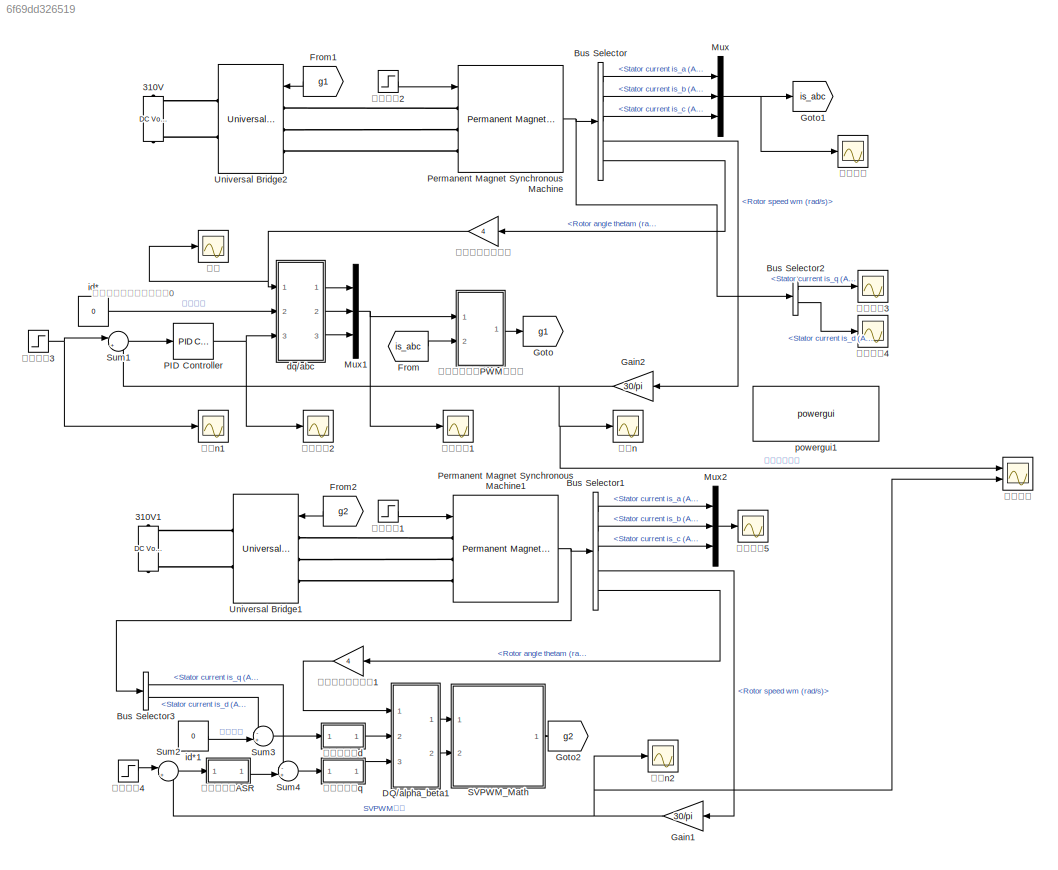
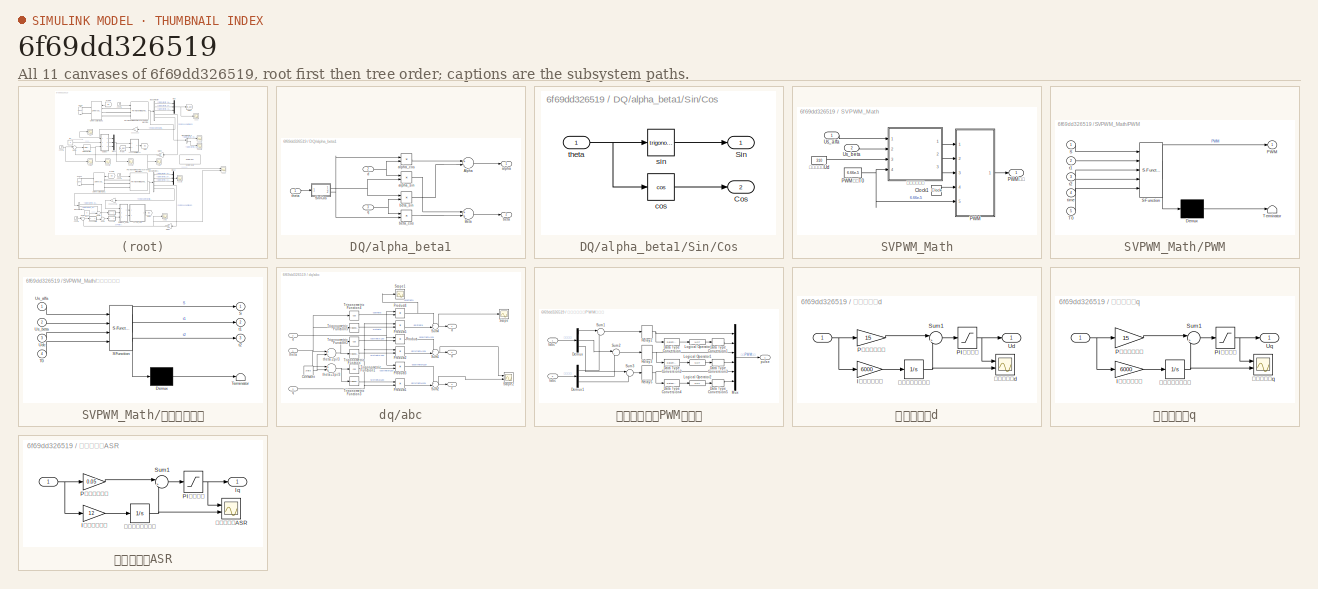
[diagram: thumbnail index - all 11 canvases of the model, root first then tree order]
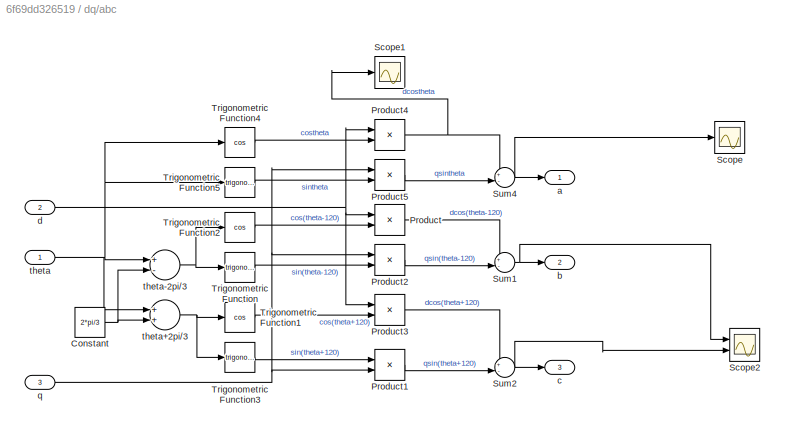
MODEL slx_6f69dd326519
KIND model
CONFIG AbsTol = auto
CONFIG EnableMultiTasking = off
CONFIG FixedStep = auto
CONFIG MaxStep = 1e-4
CONFIG MinStep = auto
CONFIG RelTol = 1e-3
CONFIG SampleTimeConstraint = Unconstrained
CONFIG Solver = ode23tb
CONFIG SolverName = ode23tb
CONFIG StartTime = 0.0
CONFIG StopTime = 0.5
BLOCK [Reference] 310V  REF=powerlib/Electrical
Sources/DC Voltage Source
  Ports = [0, 0, 0, 0, 0, 1, 1]
  SourceBlock = powerlib/Electrical\nSources/DC Voltage Source
  SourceProductBaseCode = PS
  SourceProductName = Simscape Power Systems
  SourceType = DC Voltage Source
BLOCK [Reference] 310V1  REF=powerlib/Electrical
Sources/DC Voltage Source
  Ports = [0, 0, 0, 0, 0, 1, 1]
  SourceBlock = powerlib/Electrical\nSources/DC Voltage Source
  SourceProductBaseCode = PS
  SourceProductName = Simscape Power Systems
  SourceType = DC Voltage Source
BLOCK [BusSelector] Bus Selector
  OutputAsBus = off
  OutputSignals = Stator current is_a (A),Stator current is_b (A),Stator current is_c (A),Rotor speed wm (rad/s),Rotor angle thetam (rad)
  Ports = [1, 5]
BLOCK [BusSelector] Bus Selector1
  OutputAsBus = off
  OutputSignals = Stator current is_a (A),Stator current is_b (A),Stator current is_c (A),Rotor speed wm (rad/s),Rotor angle thetam (rad)
  Ports = [1, 5]
BLOCK [BusSelector] Bus Selector2
  OutputAsBus = off
  OutputSignals = Stator current is_q (A),Stator current is_d (A)
  Ports = [1, 2]
BLOCK [BusSelector] Bus Selector3
  OutputAsBus = off
  OutputSignals = Stator current is_q (A),Stator current is_d (A)
  Ports = [1, 2]
BLOCK [SubSystem] DQ//alpha_beta1
  Ports = [3, 2]
  RequestExecContextInheritance = off
  Variant = off
BLOCK [Sum] DQ//alpha_beta1/Alpha
  InputSameDT = off
  Inputs = +-
  OutDataTypeStr = Inherit: Inherit via internal rule
  Ports = [2, 1]
  SaturateOnIntegerOverflow = off
BLOCK [Sum] DQ//alpha_beta1/Beta
  InputSameDT = off
  OutDataTypeStr = Inherit: Inherit via internal rule
  Ports = [2, 1]
  SaturateOnIntegerOverflow = off
BLOCK [SubSystem] DQ//alpha_beta1/Sin//Cos
  Ports = [1, 2]
  RequestExecContextInheritance = off
  Variant = off
BLOCK [Outport] DQ//alpha_beta1/Sin//Cos/Cos
  IconDisplay = Port number
  Port = 2
BLOCK [Outport] DQ//alpha_beta1/Sin//Cos/Sin
  IconDisplay = Port number
BLOCK [Trigonometry] DQ//alpha_beta1/Sin//Cos/cos
  Operator = cos
  Ports = [1, 1]
BLOCK [Trigonometry] DQ//alpha_beta1/Sin//Cos/sin
  Ports = [1, 1]
BLOCK [Inport] DQ//alpha_beta1/Sin//Cos/theta
  IconDisplay = Port number
BLOCK [Outport] DQ//alpha_beta1/alpha
  IconDisplay = Port number
BLOCK [Product] DQ//alpha_beta1/alpha_cos
  InputSameDT = off
  OutDataTypeStr = Inherit: Inherit via internal rule
  Ports = [2, 1]
  RndMeth = Floor
  SaturateOnIntegerOverflow = off
BLOCK [Product] DQ//alpha_beta1/alpha_sin
  InputSameDT = off
  OutDataTypeStr = Inherit: Inherit via internal rule
  Ports = [2, 1]
  RndMeth = Floor
  SaturateOnIntegerOverflow = off
BLOCK [Outport] DQ//alpha_beta1/beta
  IconDisplay = Port number
  Port = 2
BLOCK [Product] DQ//alpha_beta1/beta_cos
  InputSameDT = off
  OutDataTypeStr = Inherit: Inherit via internal rule
  Ports = [2, 1]
  RndMeth = Floor
  SaturateOnIntegerOverflow = off
BLOCK [Product] DQ//alpha_beta1/beta_sin
  InputSameDT = off
  OutDataTypeStr = Inherit: Inherit via internal rule
  Ports = [2, 1]
  RndMeth = Floor
  SaturateOnIntegerOverflow = off
BLOCK [Inport] DQ//alpha_beta1/d
  IconDisplay = Port number
  Port = 2
BLOCK [Inport] DQ//alpha_beta1/q
  IconDisplay = Port number
  Port = 3
BLOCK [Inport] DQ//alpha_beta1/theta
  IconDisplay = Port number
BLOCK [From] From
  GotoTag = is_abc
BLOCK [From] From1
  GotoTag = g1
BLOCK [From] From2
  GotoTag = g2
BLOCK [Gain] Gain1
  Gain = 30/pi
  OutDataTypeStr = Inherit: Inherit via internal rule
  ParamDataTypeStr = Inherit: Inherit via internal rule
  SaturateOnIntegerOverflow = off
BLOCK [Gain] Gain2
  Gain = 30/pi
  OutDataTypeStr = Inherit: Inherit via internal rule
  ParamDataTypeStr = Inherit: Inherit via internal rule
  SaturateOnIntegerOverflow = off
BLOCK [Goto] Goto
  GotoTag = g1
BLOCK [Goto] Goto1
  GotoTag = is_abc
BLOCK [Goto] Goto2
  GotoTag = g2
BLOCK [Mux] Mux
  DisplayOption = bar
  Inputs = 3
  Ports = [3, 1]
BLOCK [Mux] Mux1
  DisplayOption = bar
  Inputs = 3
  Ports = [3, 1]
BLOCK [Mux] Mux2
  DisplayOption = bar
  Inputs = 3
  Ports = [3, 1]
BLOCK [Reference] PID Controller  REF=simulink/Continuous/PID Controller
  Ports = [1, 1]
  SourceBlock = simulink/Continuous/PID Controller
  SourceProductBaseCode = SL
  SourceProductName = Simulink
  SourceType = PID 1dof
BLOCK [Reference] Permanent Magnet Synchronous Machine  REF=powerlib/Machines/Permanent Magnet
Synchronous Machine
  Ports = [1, 1, 0, 0, 0, 3]
  SourceBlock = powerlib/Machines/Permanent Magnet\nSynchronous Machine
  SourceProductBaseCode = PS
  SourceProductName = Simscape Power Systems
  SourceType = Permanent Magnet Synchronous Machine
BLOCK [Reference] Permanent Magnet Synchronous Machine1  REF=powerlib/Machines/Permanent Magnet
Synchronous Machine
  Ports = [1, 1, 0, 0, 0, 3]
  SourceBlock = powerlib/Machines/Permanent Magnet\nSynchronous Machine
  SourceProductBaseCode = PS
  SourceProductName = Simscape Power Systems
  SourceType = Permanent Magnet Synchronous Machine
BLOCK [SubSystem] SVPWM_Math
  Ports = [2, 1]
  RequestExecContextInheritance = off
  Variant = off
BLOCK [Clock] SVPWM_Math/Clock1
  Decimation = 1
BLOCK [SubSystem] SVPWM_Math/PWM
  ErrorFcn = Stateflow.Translate.translate
  PermitHierarchicalResolution = ExplicitOnly
  Ports = [5, 1]
  RequestExecContextInheritance = off
  SFBlockType = MATLAB Function
  TreatAsAtomicUnit = on
  Variant = off
BLOCK [Demux] SVPWM_Math/PWM/ Demux 
  Outputs = 1
  Ports = [1, 1]
BLOCK [S-Function] SVPWM_Math/PWM/ SFunction 
  EnableBusSupport = on
  FunctionName = sf_sfun
  PortCounts = [5 2]
  Ports = [5, 2]
  SFcnIsStateOwnerBlock = off
  SFunctionDeploymentMode = off
  Tag = Stateflow S-Function SynchronouslChange0 5
BLOCK [Terminator] SVPWM_Math/PWM/ Terminator 
BLOCK [Outport] SVPWM_Math/PWM/PWM
  IconDisplay = Port number
BLOCK [Inport] SVPWM_Math/PWM/S
  IconDisplay = Port number
BLOCK [Inport] SVPWM_Math/PWM/T0
  IconDisplay = Port number
  Port = 5
BLOCK [Inport] SVPWM_Math/PWM/t1
  IconDisplay = Port number
  Port = 2
BLOCK [Inport] SVPWM_Math/PWM/t2
  IconDisplay = Port number
  Port = 3
BLOCK [Inport] SVPWM_Math/PWM/time
  IconDisplay = Port number
  Port = 4
BLOCK [Outport] SVPWM_Math/PWM信号
  IconDisplay = Port number
BLOCK [Constant] SVPWM_Math/PWM周期T0
  Value = 6.66e-5
BLOCK [Inport] SVPWM_Math/Us_alfa
  IconDisplay = Port number
BLOCK [Inport] SVPWM_Math/Us_beta
  IconDisplay = Port number
  Port = 2
BLOCK [SubSystem] SVPWM_Math/作用时间计算
  ErrorFcn = Stateflow.Translate.translate
  PermitHierarchicalResolution = ExplicitOnly
  Ports = [4, 3]
  RequestExecContextInheritance = off
  SFBlockType = MATLAB Function
  TreatAsAtomicUnit = on
  Variant = off
BLOCK [Demux] SVPWM_Math/作用时间计算/ Demux 
  Outputs = 1
  Ports = [1, 1]
BLOCK [S-Function] SVPWM_Math/作用时间计算/ SFunction 
  EnableBusSupport = on
  FunctionName = sf_sfun
  PortCounts = [4 4]
  Ports = [4, 4]
  SFcnIsStateOwnerBlock = off
  SFunctionDeploymentMode = off
  Tag = Stateflow S-Function SynchronouslChange0 2
BLOCK [Terminator] SVPWM_Math/作用时间计算/ Terminator 
BLOCK [Outport] SVPWM_Math/作用时间计算/S
  IconDisplay = Port number
BLOCK [Inport] SVPWM_Math/作用时间计算/T0
  IconDisplay = Port number
  Port = 4
BLOCK [Inport] SVPWM_Math/作用时间计算/Udc
  IconDisplay = Port number
  Port = 3
BLOCK [Inport] SVPWM_Math/作用时间计算/Us_alfa
  IconDisplay = Port number
BLOCK [Inport] SVPWM_Math/作用时间计算/Us_beta
  IconDisplay = Port number
  Port = 2
BLOCK [Outport] SVPWM_Math/作用时间计算/t1
  IconDisplay = Port number
  Port = 2
BLOCK [Outport] SVPWM_Math/作用时间计算/t2
  IconDisplay = Port number
  Port = 3
BLOCK [Constant] SVPWM_Math/直流侧电压Ud
  Value = 310
BLOCK [Sum] Sum1
  IconShape = round
  InputSameDT = off
  Inputs = |+-
  OutDataTypeStr = Inherit: Inherit via internal rule
  Ports = [2, 1]
  SaturateOnIntegerOverflow = off
BLOCK [Sum] Sum2
  IconShape = round
  InputSameDT = off
  Inputs = |+-
  OutDataTypeStr = Inherit: Inherit via internal rule
  Ports = [2, 1]
  SaturateOnIntegerOverflow = off
BLOCK [Sum] Sum3
  IconShape = round
  InputSameDT = off
  Inputs = -+|
  OutDataTypeStr = Inherit: Inherit via internal rule
  Ports = [2, 1]
  SaturateOnIntegerOverflow = off
BLOCK [Sum] Sum4
  IconShape = round
  InputSameDT = off
  Inputs = -+|
  OutDataTypeStr = Inherit: Inherit via internal rule
  Ports = [2, 1]
  SaturateOnIntegerOverflow = off
BLOCK [Reference] Universal Bridge1  REF=powerlib/Power
Electronics/Universal Bridge
  Ports = [1, 0, 0, 0, 0, 3, 2]
  SourceBlock = powerlib/Power\nElectronics/Universal Bridge
  SourceProductBaseCode = PS
  SourceProductName = Simscape Power Systems
  SourceType = Universal Bridge
BLOCK [Reference] Universal Bridge2  REF=powerlib/Power
Electronics/Universal Bridge
  Ports = [1, 0, 0, 0, 0, 3, 2]
  SourceBlock = powerlib/Power\nElectronics/Universal Bridge
  SourceProductBaseCode = PS
  SourceProductName = Simscape Power Systems
  SourceType = Universal Bridge
BLOCK [SubSystem] dq//abc
  Ports = [3, 3]
  RequestExecContextInheritance = off
  Variant = off
BLOCK [Constant] dq//abc/Constant
  Value = 2*pi/3
BLOCK [Product] dq//abc/Product
  InputSameDT = off
  OutDataTypeStr = Inherit: Inherit via internal rule
  Ports = [2, 1]
  RndMeth = Floor
  SaturateOnIntegerOverflow = off
BLOCK [Product] dq//abc/Product1
  InputSameDT = off
  OutDataTypeStr = Inherit: Inherit via internal rule
  Ports = [2, 1]
  RndMeth = Floor
  SaturateOnIntegerOverflow = off
BLOCK [Product] dq//abc/Product2
  InputSameDT = off
  OutDataTypeStr = Inherit: Inherit via internal rule
  Ports = [2, 1]
  RndMeth = Floor
  SaturateOnIntegerOverflow = off
BLOCK [Product] dq//abc/Product3
  InputSameDT = off
  OutDataTypeStr = Inherit: Inherit via internal rule
  Ports = [2, 1]
  RndMeth = Floor
  SaturateOnIntegerOverflow = off
BLOCK [Product] dq//abc/Product4
  InputSameDT = off
  OutDataTypeStr = Inherit: Inherit via internal rule
  Ports = [2, 1]
  RndMeth = Floor
  SaturateOnIntegerOverflow = off
BLOCK [Product] dq//abc/Product5
  InputSameDT = off
  OutDataTypeStr = Inherit: Inherit via internal rule
  Ports = [2, 1]
  RndMeth = Floor
  SaturateOnIntegerOverflow = off
BLOCK [Scope] dq//abc/Scope
  NumInputPorts = 1
  Ports = [1]
  ScopeSpecificationString = Simulink.scopes.TimeScopeBlockCfg('CurrentConfiguration', extmgr.ConfigurationSet(extmgr.Configuration('Core','General UI',true),extmgr.Configuration('Core','Source UI',true),extmgr.Configuration('Sources','WiredSimulink',true,'DataLoggingVariableName','ScopeData1'),extmgr.Configuration('Visuals','Time Domain',true,'SerializedDisplays',{struct('MinYLimReal','-70.3942','MaxYLimReal','20.61362','YLa...<+1393ch>
BLOCK [Scope] dq//abc/Scope1
  NumInputPorts = 1
  Ports = [1]
  ScopeSpecificationString = Simulink.scopes.TimeScopeBlockCfg('CurrentConfiguration', extmgr.ConfigurationSet(extmgr.Configuration('Core','General UI',true),extmgr.Configuration('Core','Source UI',true),extmgr.Configuration('Sources','WiredSimulink',true,'DataLoggingVariableName','ScopeData6'),extmgr.Configuration('Visuals','Time Domain',true,'SerializedDisplays',{struct('MinYLimReal','-1.00000','MaxYLimReal','1.00000','YLab...<+1396ch>
BLOCK [Scope] dq//abc/Scope2
  NumInputPorts = 2
  Ports = [2]
  ScopeSpecificationString = Simulink.scopes.TimeScopeBlockCfg('CurrentConfiguration', extmgr.ConfigurationSet(extmgr.Configuration('Core','General UI',true),extmgr.Configuration('Core','Source UI',true),extmgr.Configuration('Sources','WiredSimulink',true,'DataLoggingVariableName','ScopeData7'),extmgr.Configuration('Visuals','Time Domain',true,'SerializedDisplays',{struct('MinYLimReal','-11712.18035','MaxYLimReal','1284.68671...<+1444ch>
BLOCK [Sum] dq//abc/Sum1
  IconShape = round
  InputSameDT = off
  Inputs = +-|
  OutDataTypeStr = Inherit: Inherit via internal rule
  Ports = [2, 1]
  SaturateOnIntegerOverflow = off
BLOCK [Sum] dq//abc/Sum2
  IconShape = round
  InputSameDT = off
  Inputs = +-|
  OutDataTypeStr = Inherit: Inherit via internal rule
  Ports = [2, 1]
  SaturateOnIntegerOverflow = off
BLOCK [Sum] dq//abc/Sum4
  IconShape = round
  InputSameDT = off
  Inputs = +-|
  OutDataTypeStr = Inherit: Inherit via internal rule
  Ports = [2, 1]
  SaturateOnIntegerOverflow = off
BLOCK [Trigonometry] dq//abc/Trigonometric Function
  Ports = [1, 1]
BLOCK [Trigonometry] dq//abc/Trigonometric Function1
  Operator = cos
  Ports = [1, 1]
BLOCK [Trigonometry] dq//abc/Trigonometric Function2
  Operator = cos
  Ports = [1, 1]
BLOCK [Trigonometry] dq//abc/Trigonometric Function3
  Ports = [1, 1]
BLOCK [Trigonometry] dq//abc/Trigonometric Function4
  Operator = cos
  Ports = [1, 1]
BLOCK [Trigonometry] dq//abc/Trigonometric Function5
  Ports = [1, 1]
BLOCK [Outport] dq//abc/a
  IconDisplay = Port number
BLOCK [Outport] dq//abc/b
  IconDisplay = Port number
  Port = 2
BLOCK [Outport] dq//abc/c
  IconDisplay = Port number
  Port = 3
BLOCK [Inport] dq//abc/d
  IconDisplay = Port number
  Port = 2
BLOCK [Inport] dq//abc/q
  IconDisplay = Port number
  Port = 3
BLOCK [Inport] dq//abc/theta
  IconDisplay = Port number
BLOCK [Sum] dq//abc/theta+2pi//3
  InputSameDT = off
  OutDataTypeStr = Inherit: Inherit via internal rule
  Ports = [2, 1]
  SaturateOnIntegerOverflow = off
BLOCK [Sum] dq//abc/theta-2pi//3
  InputSameDT = off
  Inputs = +-
  OutDataTypeStr = Inherit: Inherit via internal rule
  Ports = [2, 1]
  SaturateOnIntegerOverflow = off
BLOCK [Constant] id*
  Value = 0
BLOCK [Constant] id*1
  Value = 0
BLOCK [Reference] powergui1  REF=powerlib/powergui
  Ports = []
  SourceBlock = powerlib/powergui
  SourceProductBaseCode = PS
  SourceProductName = Simscape Power Systems
  SourceType = PSB option menu block
BLOCK [Scope] 定子电流
  NumInputPorts = 1
  Ports = [1]
  ScopeSpecificationString = Simulink.scopes.TimeScopeBlockCfg('CurrentConfiguration', extmgr.ConfigurationSet(extmgr.Configuration('Core','General UI',true),extmgr.Configuration('Core','Source UI',true),extmgr.Configuration('Sources','WiredSimulink',true,'DataLoggingVariableName','ScopeData1'),extmgr.Configuration('Visuals','Time Domain',true,'SerializedDisplays',{struct('MinYLimReal','-94.10276','MaxYLimReal','94.10223','YL...<+1519ch>
BLOCK [Scope] 定子电流1
  NumInputPorts = 1
  Ports = [1]
  ScopeSpecificationString = Simulink.scopes.TimeScopeBlockCfg('CurrentConfiguration', extmgr.ConfigurationSet(extmgr.Configuration('Core','General UI',true),extmgr.Configuration('Core','Source UI',true),extmgr.Configuration('Sources','WiredSimulink',true,'DataLoggingVariableName','ScopeData2'),extmgr.Configuration('Visuals','Time Domain',true,'SerializedDisplays',{struct('MinYLimReal','-37.5','MaxYLimReal','37.5','YLabelReal...<+1443ch>
BLOCK [Scope] 定子电流2
  NumInputPorts = 1
  Ports = [1]
  ScopeSpecificationString = Simulink.scopes.TimeScopeBlockCfg('CurrentConfiguration', extmgr.ConfigurationSet(extmgr.Configuration('Core','General UI',true),extmgr.Configuration('Core','Source UI',true),extmgr.Configuration('Sources','WiredSimulink',true,'DataLoggingVariableName','ScopeData3'),extmgr.Configuration('Visuals','Time Domain',true,'SerializedDisplays',{struct('MinYLimReal','-57.69921','MaxYLimReal','360.79408','Y...<+1455ch>
BLOCK [Scope] 定子电流3
  NumInputPorts = 1
  Ports = [1]
  ScopeSpecificationString = Simulink.scopes.TimeScopeBlockCfg('CurrentConfiguration', extmgr.ConfigurationSet(extmgr.Configuration('Core','General UI',true),extmgr.Configuration('Core','Source UI',true),extmgr.Configuration('Sources','WiredSimulink',true,'DataLoggingVariableName','ScopeData4'),extmgr.Configuration('Visuals','Time Domain',true,'SerializedDisplays',{struct('MinYLimReal','-94.10276','MaxYLimReal','94.10223','YL...<+1520ch>
BLOCK [Scope] 定子电流4
  NumInputPorts = 1
  Ports = [1]
  ScopeSpecificationString = Simulink.scopes.TimeScopeBlockCfg('CurrentConfiguration', extmgr.ConfigurationSet(extmgr.Configuration('Core','General UI',true),extmgr.Configuration('Core','Source UI',true),extmgr.Configuration('Sources','WiredSimulink',true,'DataLoggingVariableName','ScopeData5'),extmgr.Configuration('Visuals','Time Domain',true,'SerializedDisplays',{struct('MinYLimReal','-94.10276','MaxYLimReal','94.10223','YL...<+1520ch>
BLOCK [Scope] 定子电流5
  NumInputPorts = 1
  Ports = [1]
  ScopeSpecificationString = Simulink.scopes.TimeScopeBlockCfg('CurrentConfiguration', extmgr.ConfigurationSet(extmgr.Configuration('Core','General UI',true),extmgr.Configuration('Core','Source UI',true),extmgr.Configuration('Sources','WiredSimulink',true,'DataLoggingVariableName','ScopeData6'),extmgr.Configuration('Visuals','Time Domain',true,'SerializedDisplays',{struct('MinYLimReal','-94.10276','MaxYLimReal','94.10223','YL...<+1521ch>
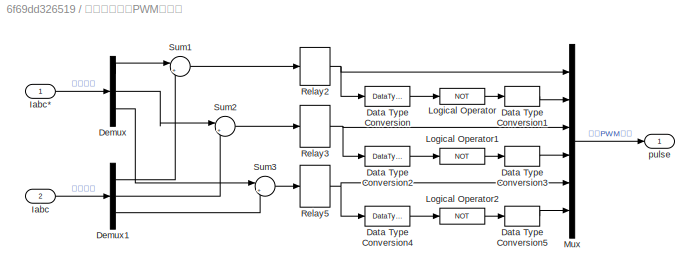
BLOCK [SubSystem] 电流滞环跟踪PWM发生器
  Ports = [2, 1]
  RequestExecContextInheritance = off
  Variant = off
BLOCK [DataTypeConversion] 电流滞环跟踪PWM发生器/Data Type Conversion
  RndMeth = Floor
  SaturateOnIntegerOverflow = off
BLOCK [DataTypeConversion] 电流滞环跟踪PWM发生器/Data Type Conversion1
  RndMeth = Floor
  SaturateOnIntegerOverflow = off
BLOCK [DataTypeConversion] 电流滞环跟踪PWM发生器/Data Type Conversion2
  RndMeth = Floor
  SaturateOnIntegerOverflow = off
BLOCK [DataTypeConversion] 电流滞环跟踪PWM发生器/Data Type Conversion3
  RndMeth = Floor
  SaturateOnIntegerOverflow = off
BLOCK [DataTypeConversion] 电流滞环跟踪PWM发生器/Data Type Conversion4
  RndMeth = Floor
  SaturateOnIntegerOverflow = off
BLOCK [DataTypeConversion] 电流滞环跟踪PWM发生器/Data Type Conversion5
  RndMeth = Floor
  SaturateOnIntegerOverflow = off
BLOCK [Demux] 电流滞环跟踪PWM发生器/Demux
  DisplayOption = bar
  Outputs = 3
  Ports = [1, 3]
BLOCK [Demux] 电流滞环跟踪PWM发生器/Demux1
  DisplayOption = bar
  Outputs = 3
  Ports = [1, 3]
BLOCK [Inport] 电流滞环跟踪PWM发生器/Iabc
  IconDisplay = Port number
  Port = 2
BLOCK [Inport] 电流滞环跟踪PWM发生器/Iabc*
  IconDisplay = Port number
BLOCK [Logic] 电流滞环跟踪PWM发生器/Logical Operator
  AllPortsSameDT = off
  Inputs = 1
  Operator = NOT
  Ports = [1, 1]
BLOCK [Logic] 电流滞环跟踪PWM发生器/Logical Operator1
  AllPortsSameDT = off
  Inputs = 1
  Operator = NOT
  Ports = [1, 1]
BLOCK [Logic] 电流滞环跟踪PWM发生器/Logical Operator2
  AllPortsSameDT = off
  Inputs = 1
  Operator = NOT
  Ports = [1, 1]
BLOCK [Mux] 电流滞环跟踪PWM发生器/Mux
  DisplayOption = bar
  Inputs = 6
  Ports = [6, 1]
BLOCK [Relay] 电流滞环跟踪PWM发生器/Relay2
  OffSwitchValue = -0.1
  OnSwitchValue = 0.1
  ZeroCross = off
BLOCK [Relay] 电流滞环跟踪PWM发生器/Relay3
  OffSwitchValue = -0.1
  OnSwitchValue = 0.1
  ZeroCross = off
BLOCK [Relay] 电流滞环跟踪PWM发生器/Relay5
  OffSwitchValue = -0.1
  OnSwitchValue = 0.1
  ZeroCross = off
BLOCK [Sum] 电流滞环跟踪PWM发生器/Sum1
  IconShape = round
  InputSameDT = off
  Inputs = |+-
  OutDataTypeStr = Inherit: Inherit via internal rule
  Ports = [2, 1]
  SaturateOnIntegerOverflow = off
BLOCK [Sum] 电流滞环跟踪PWM发生器/Sum2
  IconShape = round
  InputSameDT = off
  Inputs = |+-
  OutDataTypeStr = Inherit: Inherit via internal rule
  Ports = [2, 1]
  SaturateOnIntegerOverflow = off
BLOCK [Sum] 电流滞环跟踪PWM发生器/Sum3
  IconShape = round
  InputSameDT = off
  Inputs = |+-
  OutDataTypeStr = Inherit: Inherit via internal rule
  Ports = [2, 1]
  SaturateOnIntegerOverflow = off
BLOCK [Outport] 电流滞环跟踪PWM发生器/pulse
  IconDisplay = Port number
BLOCK [SubSystem] 电流调节器d
  Ports = [1, 1]
  RequestExecContextInheritance = off
  Variant = off
BLOCK [Inport] 电流调节器d/  
  IconDisplay = Port number
BLOCK [Gain] 电流调节器d/I积分放大倍数
  Gain = 6000
  OutDataTypeStr = Inherit: Inherit via internal rule
  ParamDataTypeStr = Inherit: Inherit via internal rule
  SaturateOnIntegerOverflow = off
BLOCK [Saturate] 电流调节器d/PI输出限幅
  InputPortMap = u0
  LowerLimit = -400
  Ports = [1, 1]
  UpperLimit = 400
BLOCK [Gain] 电流调节器d/P比例放大倍数
  Gain = 15
  OutDataTypeStr = Inherit: Inherit via internal rule
  ParamDataTypeStr = Inherit: Inherit via internal rule
  SaturateOnIntegerOverflow = off
BLOCK [Sum] 电流调节器d/Sum1
  IconShape = round
  InputSameDT = off
  Inputs = |++
  OutDataTypeStr = Inherit: Inherit via internal rule
  Ports = [2, 1]
  SaturateOnIntegerOverflow = off
BLOCK [Outport] 电流调节器d/Ud
  IconDisplay = Port number
BLOCK [Integrator] 电流调节器d/带限幅的连续积分
  LowerSaturationLimit = -30
  Ports = [1, 1]
  UpperSaturationLimit = 30
BLOCK [Scope] 电流调节器d/电流调节器d
  NumInputPorts = 2
  Ports = [2]
  ScopeSpecificationString = Simulink.scopes.TimeScopeBlockCfg('CurrentConfiguration', extmgr.ConfigurationSet(extmgr.Configuration('Core','General UI',true),extmgr.Configuration('Core','Source UI',true),extmgr.Configuration('Sources','WiredSimulink',true,'DataLoggingVariableName','ScopeData6'),extmgr.Configuration('Visuals','Time Domain',true,'SerializedDisplays',{struct('MinYLimReal','-154.27392','MaxYLimReal','62.72498','Y...<+1445ch>
BLOCK [SubSystem] 电流调节器q
  Ports = [1, 1]
  RequestExecContextInheritance = off
  Variant = off
BLOCK [Inport] 电流调节器q/  
  IconDisplay = Port number
BLOCK [Gain] 电流调节器q/I积分放大倍数
  Gain = 6000
  OutDataTypeStr = Inherit: Inherit via internal rule
  ParamDataTypeStr = Inherit: Inherit via internal rule
  SaturateOnIntegerOverflow = off
BLOCK [Saturate] 电流调节器q/PI输出限幅
  InputPortMap = u0
  LowerLimit = -300
  Ports = [1, 1]
  UpperLimit = 300
BLOCK [Gain] 电流调节器q/P比例放大倍数
  Gain = 15
  OutDataTypeStr = Inherit: Inherit via internal rule
  ParamDataTypeStr = Inherit: Inherit via internal rule
  SaturateOnIntegerOverflow = off
BLOCK [Sum] 电流调节器q/Sum1
  IconShape = round
  InputSameDT = off
  Inputs = |++
  OutDataTypeStr = Inherit: Inherit via internal rule
  Ports = [2, 1]
  SaturateOnIntegerOverflow = off
BLOCK [Outport] 电流调节器q/Uq
  IconDisplay = Port number
BLOCK [Integrator] 电流调节器q/带限幅的连续积分
  LimitOutput = on
  LowerSaturationLimit = -400
  Ports = [1, 1]
  UpperSaturationLimit = 400
BLOCK [Scope] 电流调节器q/电流调节器q
  NumInputPorts = 2
  Ports = [2]
  ScopeSpecificationString = Simulink.scopes.TimeScopeBlockCfg('CurrentConfiguration', extmgr.ConfigurationSet(extmgr.Configuration('Core','General UI',true),extmgr.Configuration('Core','Source UI',true),extmgr.Configuration('Sources','WiredSimulink',true,'DataLoggingVariableName','ScopeData6'),extmgr.Configuration('Visuals','Time Domain',true,'SerializedDisplays',{struct('MinYLimReal','61.15702','MaxYLimReal','170.66116','YL...<+1461ch>
BLOCK [Gain] 电磁角度转换系数
  Gain = 4
  OutDataTypeStr = Inherit: Inherit via internal rule
  ParamDataTypeStr = Inherit: Inherit via internal rule
  SaturateOnIntegerOverflow = off
BLOCK [Gain] 电磁角度转换系数1
  Gain = 4
  OutDataTypeStr = Inherit: Inherit via internal rule
  ParamDataTypeStr = Inherit: Inherit via internal rule
  SaturateOnIntegerOverflow = off
BLOCK [Scope] 角度
  NumInputPorts = 1
  Ports = [1]
  ScopeSpecificationString = Simulink.scopes.TimeScopeBlockCfg('CurrentConfiguration', extmgr.ConfigurationSet(extmgr.Configuration('Core','General UI',true),extmgr.Configuration('Core','Source UI',true),extmgr.Configuration('Sources','WiredSimulink',true,'DataLoggingVariableName','ScopeData7'),extmgr.Configuration('Visuals','Time Domain',true,'SerializedDisplays',{struct('MinYLimReal','-3.19602','MaxYLimReal','-1.39022','YLa...<+1439ch>
BLOCK [Step] 负载转矩1
  After = 20
  Before = 10
  SampleTime = 0
  Time = 0.2
BLOCK [Step] 负载转矩2
  After = 20
  Before = 10
  SampleTime = 0
  Time = 0.2
BLOCK [Step] 负载转矩3
  After = 1200
  Before = 1000
  SampleTime = 0
  Time = 0.3
BLOCK [Step] 负载转矩4
  After = 1200
  Before = 1000
  SampleTime = 0
  Time = 0.3
BLOCK [Scope] 转速n
  NumInputPorts = 1
  Ports = [1]
  ScopeSpecificationString = Simulink.scopes.TimeScopeBlockCfg('CurrentConfiguration', extmgr.ConfigurationSet(extmgr.Configuration('Core','General UI',true,'FigureColor',[1 1 1]),extmgr.Configuration('Core','Source UI',true),extmgr.Configuration('Sources','WiredSimulink',true,'DataLoggingVariableName','ScopeData8'),extmgr.Configuration('Visuals','Time Domain',true,'SerializedDisplays',{struct('MinYLimReal','-153.25091','MaxY...<+1579ch>
BLOCK [Scope] 转速n1
  NumInputPorts = 1
  Ports = [1]
  ScopeSpecificationString = Simulink.scopes.TimeScopeBlockCfg('CurrentConfiguration', extmgr.ConfigurationSet(extmgr.Configuration('Core','General UI',true),extmgr.Configuration('Core','Source UI',true),extmgr.Configuration('Sources','WiredSimulink',true,'DataLoggingVariableName','ScopeData9'),extmgr.Configuration('Visuals','Time Domain',true,'SerializedDisplays',{struct('MinYLimReal','575.00000','MaxYLimReal','825.00000','Y...<+1448ch>
BLOCK [Scope] 转速n2
  NumInputPorts = 1
  Ports = [1]
  ScopeSpecificationString = Simulink.scopes.TimeScopeBlockCfg('CurrentConfiguration', extmgr.ConfigurationSet(extmgr.Configuration('Core','General UI',true,'FigureColor',[1 1 1]),extmgr.Configuration('Core','Source UI',true),extmgr.Configuration('Sources','WiredSimulink',true,'DataLoggingVariableName','ScopeData10'),extmgr.Configuration('Visuals','Time Domain',true,'SerializedDisplays',{struct('MinYLimReal','-172.35614','Max...<+1571ch>
BLOCK [Scope] 转速比较
  NumInputPorts = 2
  Ports = [2]
  ScopeSpecificationString = Simulink.scopes.TimeScopeBlockCfg('CurrentConfiguration', extmgr.ConfigurationSet(extmgr.Configuration('Core','General UI',true,'FigureColor',[1 1 1]),extmgr.Configuration('Core','Source UI',true),extmgr.Configuration('Sources','WiredSimulink',true,'DataLoggingVariableName','ScopeData11'),extmgr.Configuration('Visuals','Time Domain',true,'SerializedDisplays',{struct('MinYLimReal','-184.71695','Max...<+1743ch>
BLOCK [SubSystem] 转速调节器ASR
  Ports = [1, 1]
  RequestExecContextInheritance = off
  Variant = off
BLOCK [Inport] 转速调节器ASR/  
  IconDisplay = Port number
BLOCK [Outport] 转速调节器ASR/Iq
  IconDisplay = Port number
BLOCK [Gain] 转速调节器ASR/I积分放大倍数
  Gain = 12
  OutDataTypeStr = Inherit: Inherit via internal rule
  ParamDataTypeStr = Inherit: Inherit via internal rule
  SaturateOnIntegerOverflow = off
BLOCK [Saturate] 转速调节器ASR/PI输出限幅
  InputPortMap = u0
  LowerLimit = -25
  Ports = [1, 1]
  UpperLimit = 25
BLOCK [Gain] 转速调节器ASR/P比例放大倍数
  Gain = 0.05
  OutDataTypeStr = Inherit: Inherit via internal rule
  ParamDataTypeStr = Inherit: Inherit via internal rule
  SaturateOnIntegerOverflow = off
BLOCK [Sum] 转速调节器ASR/Sum1
  IconShape = round
  InputSameDT = off
  Inputs = |++
  OutDataTypeStr = Inherit: Inherit via internal rule
  Ports = [2, 1]
  SaturateOnIntegerOverflow = off
BLOCK [Integrator] 转速调节器ASR/带限幅的连续积分
  LimitOutput = on
  LowerSaturationLimit = -30
  Ports = [1, 1]
  UpperSaturationLimit = 30
BLOCK [Scope] 转速调节器ASR/转速调节器ASR
  NumInputPorts = 2
  Ports = [2]
  ScopeSpecificationString = Simulink.scopes.TimeScopeBlockCfg('CurrentConfiguration', extmgr.ConfigurationSet(extmgr.Configuration('Core','General UI',true),extmgr.Configuration('Core','Source UI',true),extmgr.Configuration('Sources','WiredSimulink',true,'DataLoggingVariableName','ScopeData6'),extmgr.Configuration('Visuals','Time Domain',true,'SerializedDisplays',{struct('MinYLimReal','-3.75','MaxYLimReal','33.75','YLabelRea...<+1345ch>
ANNOTATION (root): 永磁同步电机励磁电流为0
LINE Bus Selector1:1 -> Mux2:1
LINE Bus Selector1:2 -> Mux2:2
LINE Bus Selector1:3 -> Mux2:3
LINE Bus Selector1:4 -> Gain1:1
LINE Bus Selector1:5 -> 电磁角度转换系数1:1
LINE Bus Selector2:1 -> 定子电流3:1
LINE Bus Selector2:2 -> 定子电流4:1
LINE Bus Selector3:1 -> Sum4:1
LINE Bus Selector3:2 -> Sum3:1
LINE Bus Selector:1 -> Mux:1
LINE Bus Selector:2 -> Mux:2
LINE Bus Selector:3 -> Mux:3
LINE Bus Selector:4 -> Gain2:1
LINE Bus Selector:5 -> 电磁角度转换系数:1
LINE DQ//alpha_beta1/Alpha:1 -> DQ//alpha_beta1/alpha:1
LINE DQ//alpha_beta1/Beta:1 -> DQ//alpha_beta1/beta:1
LINE DQ//alpha_beta1/Sin//Cos/cos:1 -> DQ//alpha_beta1/Sin//Cos/Cos:1
LINE DQ//alpha_beta1/Sin//Cos/sin:1 -> DQ//alpha_beta1/Sin//Cos/Sin:1
NET DQ//alpha_beta1/Sin//Cos/theta:1 -> DQ//alpha_beta1/Sin//Cos/cos:1, DQ//alpha_beta1/Sin//Cos/sin:1
NET DQ//alpha_beta1/Sin//Cos:1 -> DQ//alpha_beta1/alpha_sin:2, DQ//alpha_beta1/beta_sin:1
NET DQ//alpha_beta1/Sin//Cos:2 -> DQ//alpha_beta1/alpha_cos:1, DQ//alpha_beta1/beta_cos:2
LINE DQ//alpha_beta1/alpha_cos:1 -> DQ//alpha_beta1/Alpha:1
LINE DQ//alpha_beta1/alpha_sin:1 -> DQ//alpha_beta1/Beta:1
LINE DQ//alpha_beta1/beta_cos:1 -> DQ//alpha_beta1/Beta:2
LINE DQ//alpha_beta1/beta_sin:1 -> DQ//alpha_beta1/Alpha:2
NET DQ//alpha_beta1/d:1 -> DQ//alpha_beta1/alpha_cos:2, DQ//alpha_beta1/alpha_sin:1
NET DQ//alpha_beta1/q:1 -> DQ//alpha_beta1/beta_cos:1, DQ//alpha_beta1/beta_sin:2
LINE DQ//alpha_beta1/theta:1 -> DQ//alpha_beta1/Sin//Cos:1
LINE DQ//alpha_beta1:1 -> SVPWM_Math:1
LINE DQ//alpha_beta1:2 -> SVPWM_Math:2
LINE From1:1 -> Universal Bridge2:1
LINE From2:1 -> Universal Bridge1:1
LINE From:1 -> 电流滞环跟踪PWM发生器:2
NET Gain1:1 -> Sum2:2, 转速n2:1, 转速比较:2
NET Gain2:1 -> Sum1:2, 转速n:1, 转速比较:1
NET Mux1:1 -> 定子电流1:1, 电流滞环跟踪PWM发生器:1
LINE Mux2:1 -> 定子电流5:1
NET Mux:1 -> Goto1:1, 定子电流:1
NET PID Controller:1 -> dq//abc:3, 定子电流2:1
NET Permanent Magnet Synchronous Machine1:1 -> Bus Selector1:1, Bus Selector3:1
NET Permanent Magnet Synchronous Machine:1 -> Bus Selector2:1, Bus Selector:1
LINE SVPWM_Math/Clock1:1 -> SVPWM_Math/PWM:4
LINE SVPWM_Math/PWM:1 -> SVPWM_Math/PWM信号:1
NET SVPWM_Math/PWM周期T0:1 -> SVPWM_Math/PWM:5, SVPWM_Math/作用时间计算:4
LINE SVPWM_Math/Us_alfa:1 -> SVPWM_Math/作用时间计算:1
LINE SVPWM_Math/Us_beta:1 -> SVPWM_Math/作用时间计算:2
LINE SVPWM_Math/作用时间计算:1 -> SVPWM_Math/PWM:1
LINE SVPWM_Math/作用时间计算:2 -> SVPWM_Math/PWM:2
LINE SVPWM_Math/作用时间计算:3 -> SVPWM_Math/PWM:3
LINE SVPWM_Math/直流侧电压Ud:1 -> SVPWM_Math/作用时间计算:3
LINE SVPWM_Math:1 -> Goto2:1
LINE Sum1:1 -> PID Controller:1
LINE Sum2:1 -> 转速调节器ASR:1
LINE Sum3:1 -> 电流调节器d:1
LINE Sum4:1 -> 电流调节器q:1
NET dq//abc/Constant:1 -> dq//abc/theta+2pi//3:2, dq//abc/theta-2pi//3:2
LINE dq//abc/Product1:1 -> dq//abc/Sum2:2
LINE dq//abc/Product2:1 -> dq//abc/Sum1:2
LINE dq//abc/Product3:1 -> dq//abc/Sum2:1
NET dq//abc/Product4:1 -> dq//abc/Scope1:1, dq//abc/Sum4:1
LINE dq//abc/Product5:1 -> dq//abc/Sum4:2
LINE dq//abc/Product:1 -> dq//abc/Sum1:1
NET dq//abc/Sum1:1 -> dq//abc/Scope2:1, dq//abc/b:1
NET dq//abc/Sum2:1 -> dq//abc/Scope2:2, dq//abc/c:1
NET dq//abc/Sum4:1 -> dq//abc/Scope:1, dq//abc/a:1
LINE dq//abc/Trigonometric Function1:1 -> dq//abc/Product3:2
LINE dq//abc/Trigonometric Function2:1 -> dq//abc/Product:2
LINE dq//abc/Trigonometric Function3:1 -> dq//abc/Product1:1
LINE dq//abc/Trigonometric Function4:1 -> dq//abc/Product4:2
LINE dq//abc/Trigonometric Function5:1 -> dq//abc/Product5:2
LINE dq//abc/Trigonometric Function:1 -> dq//abc/Product2:2
NET dq//abc/d:1 -> dq//abc/Product3:1, dq//abc/Product4:1, dq//abc/Product:1
NET dq//abc/q:1 -> dq//abc/Product1:2, dq//abc/Product2:1, dq//abc/Product5:1
NET dq//abc/theta+2pi//3:1 -> dq//abc/Trigonometric Function1:1, dq//abc/Trigonometric Function3:1
NET dq//abc/theta-2pi//3:1 -> dq//abc/Trigonometric Function2:1, dq//abc/Trigonometric Function:1
NET dq//abc/theta:1 -> dq//abc/Trigonometric Function4:1, dq//abc/Trigonometric Function5:1, dq//abc/theta+2pi//3:1, dq//abc/theta-2pi//3:1
LINE dq//abc:1 -> Mux1:1
LINE dq//abc:2 -> Mux1:2
LINE dq//abc:3 -> Mux1:3
LINE id*1:1 -> Sum3:2
LINE id*:1 -> dq//abc:2
LINE 电流滞环跟踪PWM发生器/Data Type Conversion1:1 -> 电流滞环跟踪PWM发生器/Mux:2
LINE 电流滞环跟踪PWM发生器/Data Type Conversion2:1 -> 电流滞环跟踪PWM发生器/Logical Operator1:1
LINE 电流滞环跟踪PWM发生器/Data Type Conversion3:1 -> 电流滞环跟踪PWM发生器/Mux:4
LINE 电流滞环跟踪PWM发生器/Data Type Conversion4:1 -> 电流滞环跟踪PWM发生器/Logical Operator2:1
LINE 电流滞环跟踪PWM发生器/Data Type Conversion5:1 -> 电流滞环跟踪PWM发生器/Mux:6
LINE 电流滞环跟踪PWM发生器/Data Type Conversion:1 -> 电流滞环跟踪PWM发生器/Logical Operator:1
LINE 电流滞环跟踪PWM发生器/Demux1:1 -> 电流滞环跟踪PWM发生器/Sum1:2
LINE 电流滞环跟踪PWM发生器/Demux1:2 -> 电流滞环跟踪PWM发生器/Sum2:2
LINE 电流滞环跟踪PWM发生器/Demux1:3 -> 电流滞环跟踪PWM发生器/Sum3:2
LINE 电流滞环跟踪PWM发生器/Demux:1 -> 电流滞环跟踪PWM发生器/Sum1:1
LINE 电流滞环跟踪PWM发生器/Demux:2 -> 电流滞环跟踪PWM发生器/Sum2:1
LINE 电流滞环跟踪PWM发生器/Demux:3 -> 电流滞环跟踪PWM发生器/Sum3:1
LINE 电流滞环跟踪PWM发生器/Iabc*:1 -> 电流滞环跟踪PWM发生器/Demux:1
LINE 电流滞环跟踪PWM发生器/Iabc:1 -> 电流滞环跟踪PWM发生器/Demux1:1
LINE 电流滞环跟踪PWM发生器/Logical Operator1:1 -> 电流滞环跟踪PWM发生器/Data Type Conversion3:1
LINE 电流滞环跟踪PWM发生器/Logical Operator2:1 -> 电流滞环跟踪PWM发生器/Data Type Conversion5:1
LINE 电流滞环跟踪PWM发生器/Logical Operator:1 -> 电流滞环跟踪PWM发生器/Data Type Conversion1:1
LINE 电流滞环跟踪PWM发生器/Mux:1 -> 电流滞环跟踪PWM发生器/pulse:1
NET 电流滞环跟踪PWM发生器/Relay2:1 -> 电流滞环跟踪PWM发生器/Data Type Conversion:1, 电流滞环跟踪PWM发生器/Mux:1
NET 电流滞环跟踪PWM发生器/Relay3:1 -> 电流滞环跟踪PWM发生器/Data Type Conversion2:1, 电流滞环跟踪PWM发生器/Mux:3
NET 电流滞环跟踪PWM发生器/Relay5:1 -> 电流滞环跟踪PWM发生器/Data Type Conversion4:1, 电流滞环跟踪PWM发生器/Mux:5
LINE 电流滞环跟踪PWM发生器/Sum1:1 -> 电流滞环跟踪PWM发生器/Relay2:1
LINE 电流滞环跟踪PWM发生器/Sum2:1 -> 电流滞环跟踪PWM发生器/Relay3:1
LINE 电流滞环跟踪PWM发生器/Sum3:1 -> 电流滞环跟踪PWM发生器/Relay5:1
LINE 电流滞环跟踪PWM发生器:1 -> Goto:1
NET 电流调节器d/  :1 -> 电流调节器d/I积分放大倍数:1, 电流调节器d/P比例放大倍数:1
LINE 电流调节器d/I积分放大倍数:1 -> 电流调节器d/带限幅的连续积分:1
NET 电流调节器d/PI输出限幅:1 -> 电流调节器d/Ud:1, 电流调节器d/电流调节器d:1
LINE 电流调节器d/P比例放大倍数:1 -> 电流调节器d/Sum1:1
LINE 电流调节器d/Sum1:1 -> 电流调节器d/PI输出限幅:1
NET 电流调节器d/带限幅的连续积分:1 -> 电流调节器d/Sum1:2, 电流调节器d/电流调节器d:2
LINE 电流调节器d:1 -> DQ//alpha_beta1:2
NET 电流调节器q/  :1 -> 电流调节器q/I积分放大倍数:1, 电流调节器q/P比例放大倍数:1
LINE 电流调节器q/I积分放大倍数:1 -> 电流调节器q/带限幅的连续积分:1
NET 电流调节器q/PI输出限幅:1 -> 电流调节器q/Uq:1, 电流调节器q/电流调节器q:1
LINE 电流调节器q/P比例放大倍数:1 -> 电流调节器q/Sum1:1
LINE 电流调节器q/Sum1:1 -> 电流调节器q/PI输出限幅:1
NET 电流调节器q/带限幅的连续积分:1 -> 电流调节器q/Sum1:2, 电流调节器q/电流调节器q:2
LINE 电流调节器q:1 -> DQ//alpha_beta1:3
LINE 电磁角度转换系数1:1 -> DQ//alpha_beta1:1
NET 电磁角度转换系数:1 -> dq//abc:1, 角度:1
LINE 负载转矩1:1 -> Permanent Magnet Synchronous Machine1:1
LINE 负载转矩2:1 -> Permanent Magnet Synchronous Machine:1
NET 负载转矩3:1 -> Sum1:1, 转速n1:1
LINE 负载转矩4:1 -> Sum2:1
NET 转速调节器ASR/  :1 -> 转速调节器ASR/I积分放大倍数:1, 转速调节器ASR/P比例放大倍数:1
LINE 转速调节器ASR/I积分放大倍数:1 -> 转速调节器ASR/带限幅的连续积分:1
NET 转速调节器ASR/PI输出限幅:1 -> 转速调节器ASR/Iq:1, 转速调节器ASR/转速调节器ASR:1
LINE 转速调节器ASR/P比例放大倍数:1 -> 转速调节器ASR/Sum1:1
LINE 转速调节器ASR/Sum1:1 -> 转速调节器ASR/PI输出限幅:1
NET 转速调节器ASR/带限幅的连续积分:1 -> 转速调节器ASR/Sum1:2, 转速调节器ASR/转速调节器ASR:2
LINE 转速调节器ASR:1 -> Sum4:2
PLINE 310V1:LConn1 -- Universal Bridge1:RConn2
PLINE 310V1:RConn1 -- Universal Bridge1:RConn1
PLINE 310V:LConn1 -- Universal Bridge2:RConn2
PLINE 310V:RConn1 -- Universal Bridge2:RConn1
PLINE Permanent Magnet Synchronous Machine1:LConn1 -- Universal Bridge1:LConn1
PLINE Permanent Magnet Synchronous Machine1:LConn2 -- Universal Bridge1:LConn2
PLINE Permanent Magnet Synchronous Machine1:LConn3 -- Universal Bridge1:LConn3
PLINE Permanent Magnet Synchronous Machine:LConn1 -- Universal Bridge2:LConn1
PLINE Permanent Magnet Synchronous Machine:LConn2 -- Universal Bridge2:LConn2
PLINE Permanent Magnet Synchronous Machine:LConn3 -- Universal Bridge2:LConn3
note: NET lines group one-source signal fan-out (src -> all destinations, sorted); 1:1 wires keep LINE
CHART SVPWM_Math/作用时间计算 states=1 transitions=1
  STATE_LABEL 'eML_blk_kernel()'
  STATE_LABEL 'SCRIPT:\nfunction [S,t1,t2] = fcn(Us_alfa,Us_beta,Udc,T0)\n% This block supports an embeddable subset of the MATLAB language.\n% See the help menu for details.\n%--------------------为了方便推导作用时间做出的设定值------------------------\nX=sqrt(3)*T0*Us_beta/Udc;                           \nY=sqrt(3)/2*T0*Us_beta/Udc+3/2*T0*Us_alfa/Udc;     \nZ=sqrt(3)/2*T0*Us_beta/Udc-3/2*T0*Us_alfa/Udc;      \n%----------------------...<+2847ch>'
CHART SVPWM_Math/PWM states=1 transitions=1
  STATE_LABEL 'eML_blk_kernel()'
  STATE_LABEL 'SCRIPT:\nfunction PWM =fcn(S,t1,t2,time,T0)\n% This block supports an embeddable subset of the MATLAB language.\n% See the help menu for details. \n%------------------------------普通定义电压---------------------------------\n%U0=[0 0 0];U1=[1 0 0];U2=[1 1 0];U3=[0 1 0];\n%U4=[0 1 1];U5=[0 0 1];U6=[1 0 1];U7=[1 1 1];\n%------------------------由上可得八种电压输出信号控制（每种后面取反）---------\nU0=[0 1 0 1 0 1];U1=[1 0 0 1 0 1];U2...<+1534ch>'
